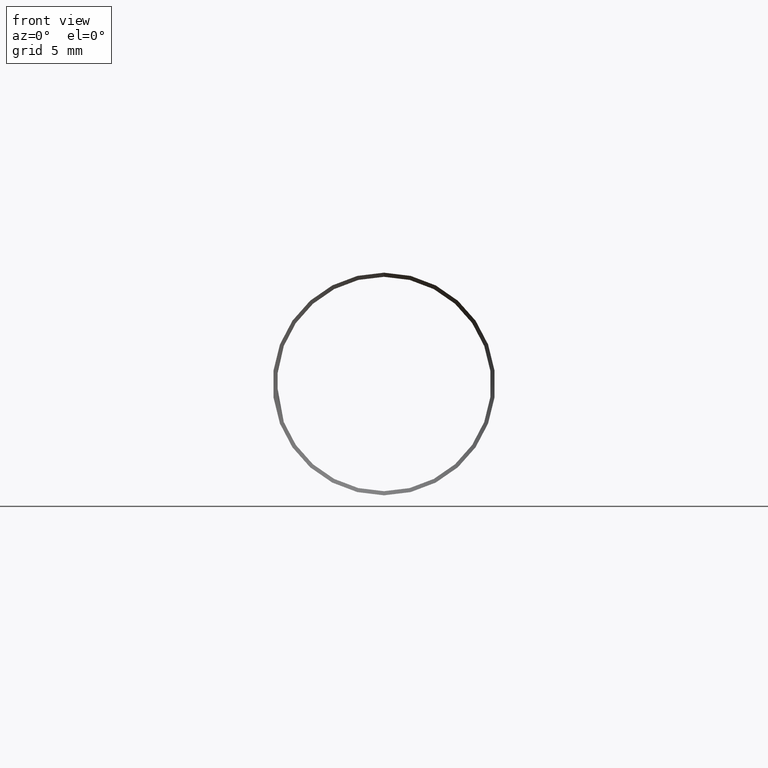
[diagram: clean part render]
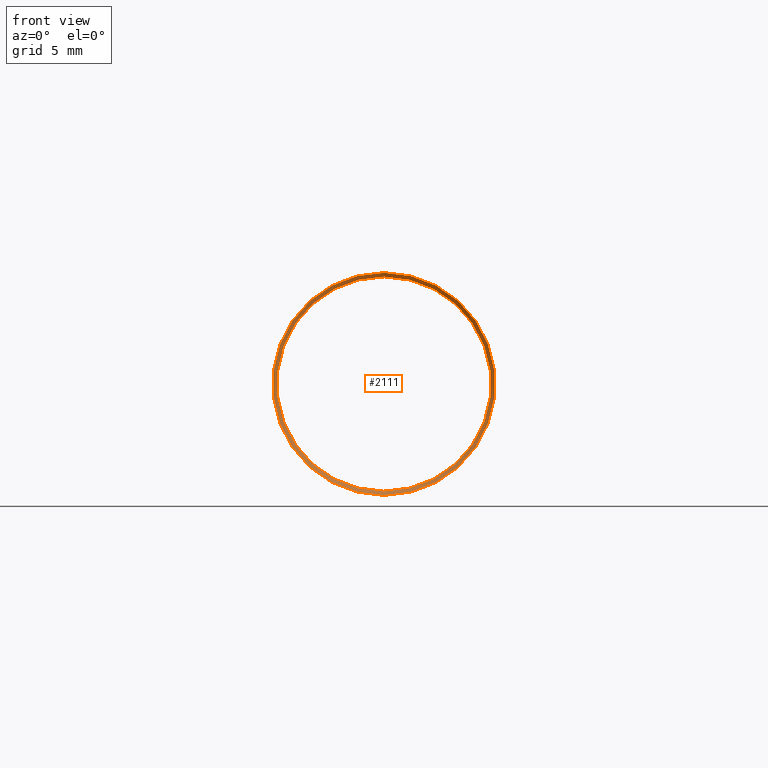
[diagram: same view with one face highlighted and labeled with its STEP entity id]
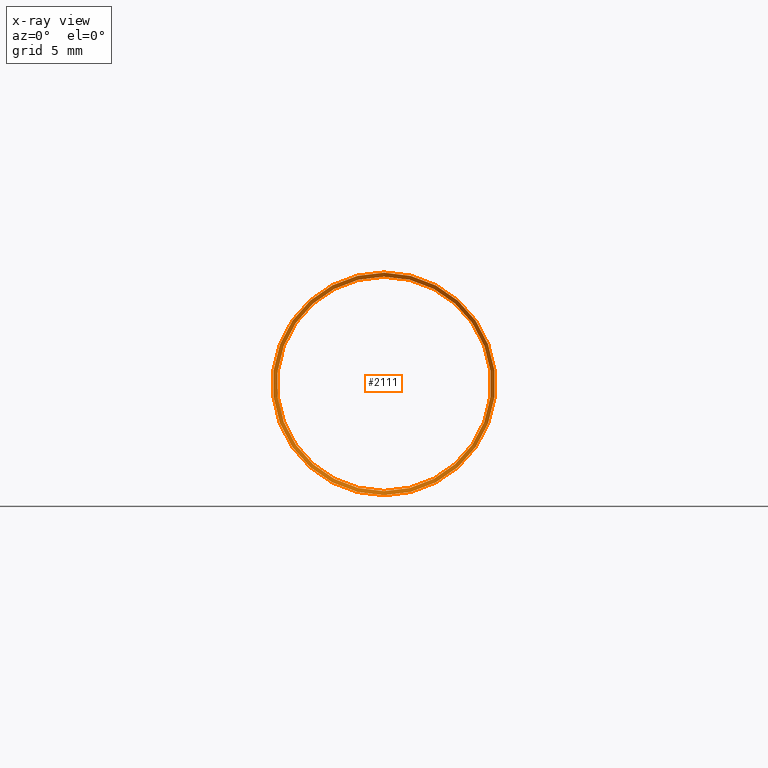
[diagram: x-ray of the same camera — body ghosted, the highlighted face saturated]
A machine part, front view. The second image highlights one B-rep face of the part: STEP entity #2111.
The next image is the same camera in x-ray: the body ghosted, the highlighted face saturated — about 0% of this face is hidden behind the body in this view.
In plain terms, the highlighted conical surface has half-angle 53.954 deg.
Its self-contained STEP definition (entity closure, byte-faithful):
#235 = CARTESIAN_POINT ( 'NONE',  ( 0.0000000000000000000, -18.95295967305291300, 6.386338515270687700 ) ) ;
#991 = ORIENTED_EDGE ( 'NONE', *, *, #5240, .F. ) ;
#1900 = AXIS2_PLACEMENT_3D ( 'NONE', #8683, #3112, #6269 ) ;
#1953 = VERTEX_POINT ( 'NONE', #2529 ) ;
#2111 = ADVANCED_FACE ( 'NONE', ( #2510, #5506 ), #7509, .F. ) ;
#2330 = DIRECTION ( 'NONE',  ( 0.0000000000000000000, 1.000000000000000000, 0.0000000000000000000 ) ) ;
#2445 = DIRECTION ( 'NONE',  ( -0.0000000000000000000, -1.000000000000000000, -0.0000000000000000000 ) ) ;
#2490 = ORIENTED_EDGE ( 'NONE', *, *, #5927, .F. ) ;
#2510 = FACE_BOUND ( 'NONE', #9904, .T. ) ;
#2529 = CARTESIAN_POINT ( 'NONE',  ( 1.836970198721029600E-015, -18.78096161522060800, 6.150000000000002100 ) ) ;
#2652 = CIRCLE ( 'NONE', #7723, 6.386338515270687700 ) ;
#3112 = DIRECTION ( 'NONE',  ( -0.0000000000000000000, -1.000000000000000000, -0.0000000000000000000 ) ) ;
#5240 = EDGE_CURVE ( 'NONE', #8203, #8203, #2652, .T. ) ;
#5506 = FACE_OUTER_BOUND ( 'NONE', #6497, .T. ) ;
#5890 = CIRCLE ( 'NONE', #1900, 6.150000000000002100 ) ;
#5927 = EDGE_CURVE ( 'NONE', #1953, #1953, #5890, .T. ) ;
#6269 = DIRECTION ( 'NONE',  ( 0.0000000000000000000, 0.0000000000000000000, 1.000000000000000000 ) ) ;
#6497 = EDGE_LOOP ( 'NONE', ( #991 ) ) ;
#6532 = DIRECTION ( 'NONE',  ( 0.0000000000000000000, 0.0000000000000000000, -1.000000000000000000 ) ) ;
#7232 = DIRECTION ( 'NONE',  ( 0.0000000000000000000, 0.0000000000000000000, 1.000000000000000000 ) ) ;
#7267 = CARTESIAN_POINT ( 'NONE',  ( 0.0000000000000000000, -18.95295967305291300, 0.0000000000000000000 ) ) ;
#7509 = CONICAL_SURFACE ( 'NONE', #9537, 6.386338515270686900, 0.9416804711593712600 ) ;
#7513 = CARTESIAN_POINT ( 'NONE',  ( 1.836970198721029600E-015, -18.95295967305291600, 0.0000000000000000000 ) ) ;
#7723 = AXIS2_PLACEMENT_3D ( 'NONE', #7267, #2330, #7232 ) ;
#8203 = VERTEX_POINT ( 'NONE', #235 ) ;
#8683 = CARTESIAN_POINT ( 'NONE',  ( 1.836970198721029600E-015, -18.78096161522060800, 0.0000000000000000000 ) ) ;
#9537 = AXIS2_PLACEMENT_3D ( 'NONE', #7513, #2445, #6532 ) ;
#9904 = EDGE_LOOP ( 'NONE', ( #2490 ) ) ;